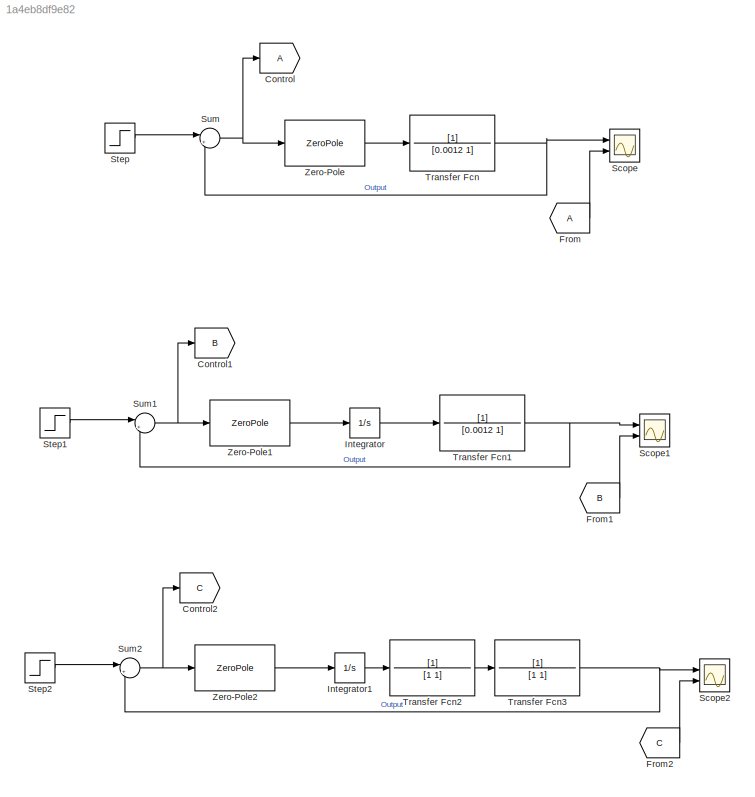
MODEL slx_1a4eb8df9e82
KIND model
CONFIG AbsTol = auto
CONFIG EnableMultiTasking = off
CONFIG FixedStep = auto
CONFIG MaxStep = auto
CONFIG MinStep = auto
CONFIG RelTol = 1e-3
CONFIG SampleTimeConstraint = Unconstrained
CONFIG SolverName = VariableStepAuto
CONFIG StartTime = 0.0
CONFIG StopTime = 100
BLOCK [Goto] Control
BLOCK [Goto] Control1
  GotoTag = B
BLOCK [Goto] Control2
  GotoTag = C
BLOCK [From] From
BLOCK [From] From1
  GotoTag = B
BLOCK [From] From2
  GotoTag = C
BLOCK [Integrator] Integrator
  Ports = [1, 1]
BLOCK [Integrator] Integrator1
  Ports = [1, 1]
BLOCK [Scope] Scope
  Floating = off
  NumInputPorts = 2
  Ports = [2]
  ScopeSpecificationString = Simulink.scopes.TimeScopeBlockCfg('CurrentConfiguration', extmgr.ConfigurationSet(extmgr.Configuration('Core','General UI',true),extmgr.Configuration('Core','Source UI',true),extmgr.Configuration('Sources','WiredSimulink',true),extmgr.Configuration('Visuals','Time Domain',true,'SerializedDisplays',{struct('MinYLimReal','-0.12253','MaxYLimReal','1.1028','YLabelReal','','MinYLimMag','0.00000','MaxYL...<+1744ch>
BLOCK [Scope] Scope1
  Floating = off
  NumInputPorts = 2
  Ports = [2]
  ScopeSpecificationString = Simulink.scopes.TimeScopeBlockCfg('CurrentConfiguration', extmgr.ConfigurationSet(extmgr.Configuration('Core','General UI',true),extmgr.Configuration('Core','Source UI',true),extmgr.Configuration('Sources','WiredSimulink',true,'DataLoggingVariableName','ScopeData1'),extmgr.Configuration('Visuals','Time Domain',true,'SerializedDisplays',{struct('MinYLimReal','-0.12253','MaxYLimReal','1.1028','YLabe...<+1785ch>
BLOCK [Scope] Scope2
  Floating = off
  NumInputPorts = 2
  Ports = [2]
  ScopeSpecificationString = Simulink.scopes.TimeScopeBlockCfg('CurrentConfiguration', extmgr.ConfigurationSet(extmgr.Configuration('Core','General UI',true),extmgr.Configuration('Core','Source UI',true),extmgr.Configuration('Sources','WiredSimulink',true,'DataLoggingVariableName','ScopeData2'),extmgr.Configuration('Visuals','Time Domain',true,'SerializedDisplays',{struct('MinYLimReal','-0.43514','MaxYLimReal','1.43514','YLab...<+1839ch>
BLOCK [Step] Step
  SampleTime = 0
  Time = 0
BLOCK [Step] Step1
  SampleTime = 0
  Time = 0
BLOCK [Step] Step2
  SampleTime = 0
  Time = 0
BLOCK [Sum] Sum
  Inputs = |+-
  Ports = [2, 1]
BLOCK [Sum] Sum1
  Inputs = |+-
  Ports = [2, 1]
BLOCK [Sum] Sum2
  Inputs = |+-
  Ports = [2, 1]
BLOCK [TransferFcn] Transfer Fcn
  Denominator = [0.0012 1]
BLOCK [TransferFcn] Transfer Fcn1
  Denominator = [0.0012 1]
BLOCK [TransferFcn] Transfer Fcn2
  Denominator = [1 1]
BLOCK [TransferFcn] Transfer Fcn3
  Denominator = [1 1]
BLOCK [ZeroPole] Zero-Pole
  Poles = [-2]
  Zeros = [-1300]
BLOCK [ZeroPole] Zero-Pole1
  Poles = [-25]
  Zeros = [-220]
BLOCK [ZeroPole] Zero-Pole2
  Poles = [-1600]
  Zeros = [-410]
LINE From1:1 -> Scope1:2
LINE From2:1 -> Scope2:2
LINE From:1 -> Scope:2
LINE Integrator1:1 -> Transfer Fcn2:1
LINE Integrator:1 -> Transfer Fcn1:1
LINE Step1:1 -> Sum1:1
LINE Step2:1 -> Sum2:1
LINE Step:1 -> Sum:1
NET Sum1:1 -> Control1:1, Zero-Pole1:1
NET Sum2:1 -> Control2:1, Zero-Pole2:1
NET Sum:1 -> Control:1, Zero-Pole:1
NET Transfer Fcn1:1 -> Scope1:1, Sum1:2
LINE Transfer Fcn2:1 -> Transfer Fcn3:1
NET Transfer Fcn3:1 -> Scope2:1, Sum2:2
NET Transfer Fcn:1 -> Scope:1, Sum:2
LINE Zero-Pole1:1 -> Integrator:1
LINE Zero-Pole2:1 -> Integrator1:1
LINE Zero-Pole:1 -> Transfer Fcn:1
note: NET lines group one-source signal fan-out (src -> all destinations, sorted); 1:1 wires keep LINE
